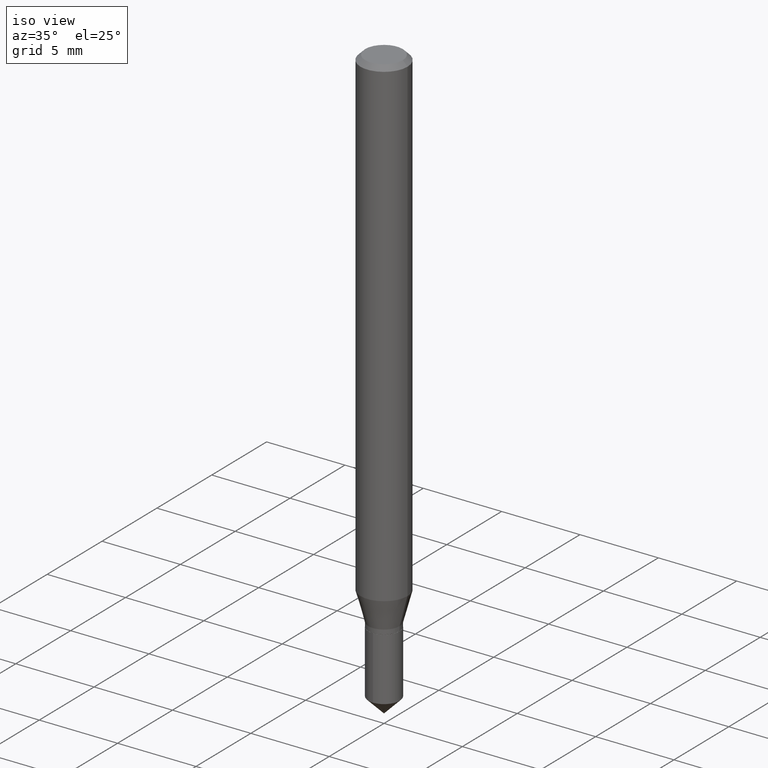
[diagram: clean part render]
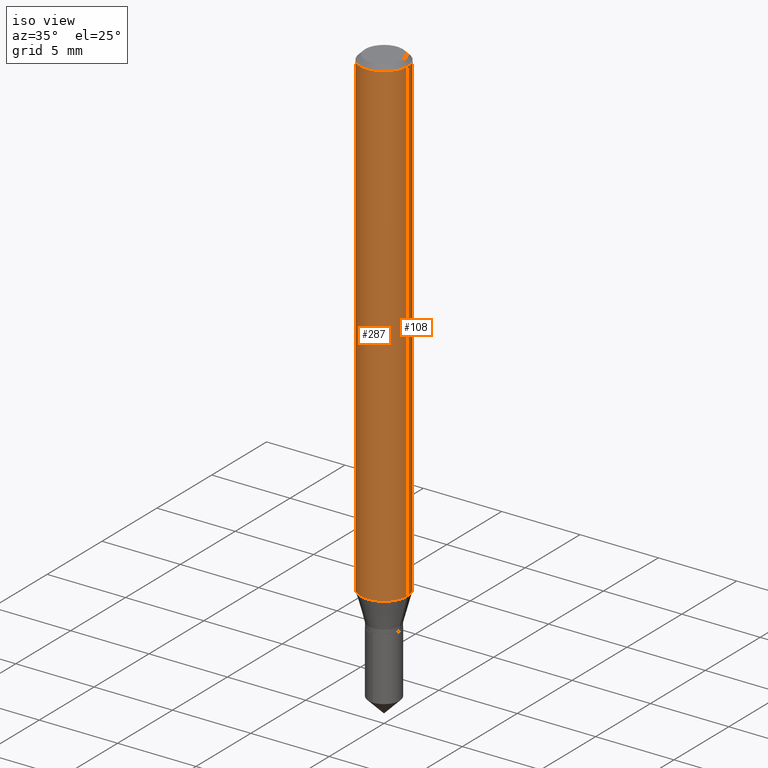
[diagram: same view with one multi-face feature highlighted, each face labeled with its STEP entity id]
A machine part, iso view. The highlighted faces form ONE feature: a constant-radius fillet chain: 2 tangent blend faces with common blend radius 1.4999 mm. The faces share edges in the B-rep.
Their STEP definitions:
[1] entity #287 (Cylinder):
#10 = DIRECTION ( 'NONE',  ( 1.000000000000000000, -6.982962677686266711E-15, 0.000000000000000000 ) ) ;
#22 = DIRECTION ( 'NONE',  ( 1.000000000000000000, -6.982962677686266711E-15, 4.876176775795936353E-29 ) ) ;
#31 = CIRCLE ( 'NONE', #265, 0.05905000000000015098 ) ;
#42 = DIRECTION ( 'NONE',  ( 1.000000000000000000, -6.982962677686271444E-15, 0.000000000000000000 ) ) ;
#44 = VERTEX_POINT ( 'NONE', #72 ) ;
#45 = CARTESIAN_POINT ( 'NONE',  ( -0.05905000000000007465, 4.195754854663396902E-16, -2.904631170795525395E-30 ) ) ;
#51 = ORIENTED_EDGE ( 'NONE', *, *, #426, .T. ) ;
#72 = CARTESIAN_POINT ( 'NONE',  ( 0.05905000000000015098, -4.650578422464288085E-15, -1.213878599090892685 ) ) ;
#82 = VERTEX_POINT ( 'NONE', #323 ) ;
#90 = CARTESIAN_POINT ( 'NONE',  ( 0.05905000000000007465, -4.123439461173745750E-16, 2.879382386107504074E-30 ) ) ;
#114 = CARTESIAN_POINT ( 'NONE',  ( 2.968502248572491582E-29, -4.238234476346912376E-15, -1.213878599090892685 ) ) ;
#117 = EDGE_CURVE ( 'NONE', #82, #169, #222, .T. ) ;
#134 = EDGE_CURVE ( 'NONE', #44, #169, #234, .T. ) ;
#157 = EDGE_LOOP ( 'NONE', ( #236, #51, #416, #418 ) ) ;
#158 = DIRECTION ( 'NONE',  ( -2.445468806185136597E-29, 3.491481338843145583E-15, 1.000000000000000000 ) ) ;
#160 = DIRECTION ( 'NONE',  ( -2.445468806185136597E-29, 3.491481338843145583E-15, 1.000000000000000000 ) ) ;
#168 = CARTESIAN_POINT ( 'NONE',  ( 0.05904999999999999832, -4.535783407291118600E-16, -0.01181000000000006350 ) ) ;
#169 = VERTEX_POINT ( 'NONE', #168 ) ;
#211 = CARTESIAN_POINT ( 'NONE',  ( 0.000000000000000000, 0.000000000000000000, 0.000000000000000000 ) ) ;
#222 = CIRCLE ( 'NONE', #440, 0.05904999999999999832 ) ;
#230 = EDGE_CURVE ( 'NONE', #371, #82, #231, .T. ) ;
#231 = LINE ( 'NONE', #45, #392 ) ;
#234 = LINE ( 'NONE', #90, #264 ) ;
#236 = ORIENTED_EDGE ( 'NONE', *, *, #230, .F. ) ;
#264 = VECTOR ( 'NONE', #340, 39.37007874015748143 ) ;
#265 = AXIS2_PLACEMENT_3D ( 'NONE', #114, #158, #42 ) ;
#287 = ADVANCED_FACE ( 'NONE', ( #359 ), #318, .T. ) ;
#295 = CARTESIAN_POINT ( 'NONE',  ( -0.05905000000000015098, -3.818658990880572095E-15, -1.213878599090892685 ) ) ;
#309 = CARTESIAN_POINT ( 'NONE',  ( 2.888098660104662014E-31, -4.123439461173777182E-17, -0.01181000000000006350 ) ) ;
#318 = CYLINDRICAL_SURFACE ( 'NONE', #420, 0.05905000000000007465 ) ;
#323 = CARTESIAN_POINT ( 'NONE',  ( -0.05904999999999999832, -1.720158950012984376E-15, -0.01181000000000006350 ) ) ;
#340 = DIRECTION ( 'NONE',  ( -2.445468806185136877E-29, 3.491481338843145188E-15, 1.000000000000000000 ) ) ;
#359 = FACE_OUTER_BOUND ( 'NONE', #157, .T. ) ;
#371 = VERTEX_POINT ( 'NONE', #295 ) ;
#392 = VECTOR ( 'NONE', #458, 39.37007874015748143 ) ;
#395 = DIRECTION ( 'NONE',  ( -2.445468806185136597E-29, 3.491481338843145583E-15, 1.000000000000000000 ) ) ;
#416 = ORIENTED_EDGE ( 'NONE', *, *, #134, .T. ) ;
#418 = ORIENTED_EDGE ( 'NONE', *, *, #117, .F. ) ;
#420 = AXIS2_PLACEMENT_3D ( 'NONE', #211, #395, #22 ) ;
#426 = EDGE_CURVE ( 'NONE', #371, #44, #31, .T. ) ;
#440 = AXIS2_PLACEMENT_3D ( 'NONE', #309, #160, #10 ) ;
#458 = DIRECTION ( 'NONE',  ( -2.445468806185136877E-29, 3.491481338843145188E-15, 1.000000000000000000 ) ) ;
[2] entity #108 (Cylinder):
#29 = DIRECTION ( 'NONE',  ( 1.000000000000000000, -6.982962677686271444E-15, 0.000000000000000000 ) ) ;
#36 = EDGE_CURVE ( 'NONE', #44, #371, #191, .T. ) ;
#40 = AXIS2_PLACEMENT_3D ( 'NONE', #277, #61, #353 ) ;
#44 = VERTEX_POINT ( 'NONE', #72 ) ;
#45 = CARTESIAN_POINT ( 'NONE',  ( -0.05905000000000007465, 4.195754854663396902E-16, -2.904631170795525395E-30 ) ) ;
#61 = DIRECTION ( 'NONE',  ( -2.445468806185136597E-29, 3.491481338843145583E-15, 1.000000000000000000 ) ) ;
#72 = CARTESIAN_POINT ( 'NONE',  ( 0.05905000000000015098, -4.650578422464288085E-15, -1.213878599090892685 ) ) ;
#82 = VERTEX_POINT ( 'NONE', #323 ) ;
#90 = CARTESIAN_POINT ( 'NONE',  ( 0.05905000000000007465, -4.123439461173745750E-16, 2.879382386107504074E-30 ) ) ;
#92 = CYLINDRICAL_SURFACE ( 'NONE', #112, 0.05905000000000007465 ) ;
#95 = ORIENTED_EDGE ( 'NONE', *, *, #134, .F. ) ;
#108 = ADVANCED_FACE ( 'NONE', ( #127 ), #92, .T. ) ;
#112 = AXIS2_PLACEMENT_3D ( 'NONE', #344, #237, #390 ) ;
#126 = ORIENTED_EDGE ( 'NONE', *, *, #36, .T. ) ;
#127 = FACE_OUTER_BOUND ( 'NONE', #215, .T. ) ;
#134 = EDGE_CURVE ( 'NONE', #44, #169, #234, .T. ) ;
#139 = ORIENTED_EDGE ( 'NONE', *, *, #299, .F. ) ;
#168 = CARTESIAN_POINT ( 'NONE',  ( 0.05904999999999999832, -4.535783407291118600E-16, -0.01181000000000006350 ) ) ;
#169 = VERTEX_POINT ( 'NONE', #168 ) ;
#177 = CARTESIAN_POINT ( 'NONE',  ( 2.968502248572491582E-29, -4.238234476346912376E-15, -1.213878599090892685 ) ) ;
#191 = CIRCLE ( 'NONE', #307, 0.05905000000000015098 ) ;
#215 = EDGE_LOOP ( 'NONE', ( #126, #335, #139, #95 ) ) ;
#230 = EDGE_CURVE ( 'NONE', #371, #82, #231, .T. ) ;
#231 = LINE ( 'NONE', #45, #392 ) ;
#234 = LINE ( 'NONE', #90, #264 ) ;
#237 = DIRECTION ( 'NONE',  ( -2.445468806185136597E-29, 3.491481338843145583E-15, 1.000000000000000000 ) ) ;
#251 = DIRECTION ( 'NONE',  ( -2.445468806185136597E-29, 3.491481338843145583E-15, 1.000000000000000000 ) ) ;
#264 = VECTOR ( 'NONE', #340, 39.37007874015748143 ) ;
#277 = CARTESIAN_POINT ( 'NONE',  ( 2.888098660104662014E-31, -4.123439461173777182E-17, -0.01181000000000006350 ) ) ;
#295 = CARTESIAN_POINT ( 'NONE',  ( -0.05905000000000015098, -3.818658990880572095E-15, -1.213878599090892685 ) ) ;
#299 = EDGE_CURVE ( 'NONE', #169, #82, #428, .T. ) ;
#307 = AXIS2_PLACEMENT_3D ( 'NONE', #177, #251, #29 ) ;
#323 = CARTESIAN_POINT ( 'NONE',  ( -0.05904999999999999832, -1.720158950012984376E-15, -0.01181000000000006350 ) ) ;
#335 = ORIENTED_EDGE ( 'NONE', *, *, #230, .T. ) ;
#340 = DIRECTION ( 'NONE',  ( -2.445468806185136877E-29, 3.491481338843145188E-15, 1.000000000000000000 ) ) ;
#344 = CARTESIAN_POINT ( 'NONE',  ( 0.000000000000000000, 0.000000000000000000, 0.000000000000000000 ) ) ;
#353 = DIRECTION ( 'NONE',  ( 1.000000000000000000, -6.982962677686266711E-15, 0.000000000000000000 ) ) ;
#371 = VERTEX_POINT ( 'NONE', #295 ) ;
#390 = DIRECTION ( 'NONE',  ( 1.000000000000000000, -6.982962677686266711E-15, 4.876176775795936353E-29 ) ) ;
#392 = VECTOR ( 'NONE', #458, 39.37007874015748143 ) ;
#428 = CIRCLE ( 'NONE', #40, 0.05904999999999999832 ) ;
#458 = DIRECTION ( 'NONE',  ( -2.445468806185136877E-29, 3.491481338843145188E-15, 1.000000000000000000 ) ) ;